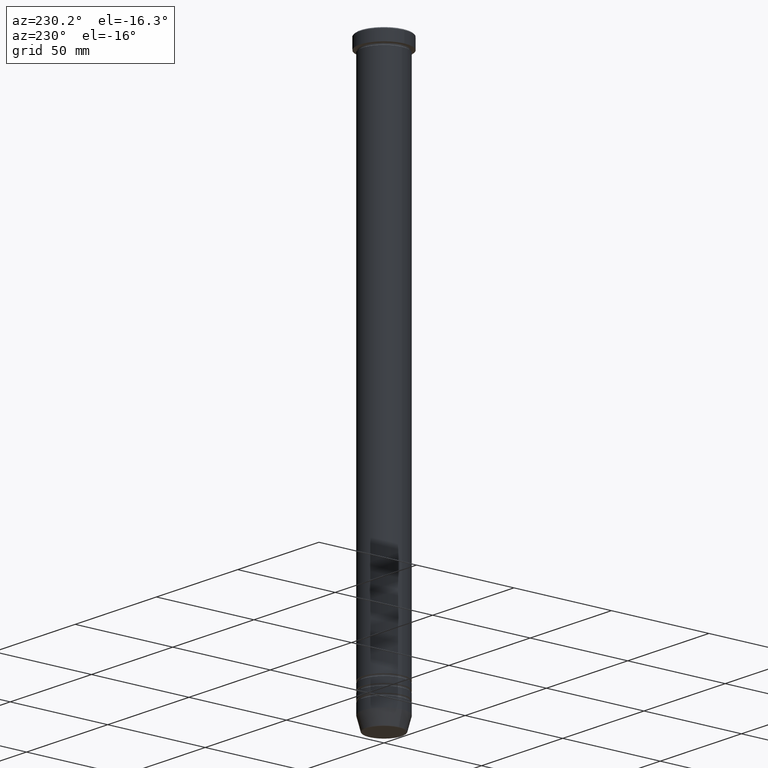
[diagram: clean part render]
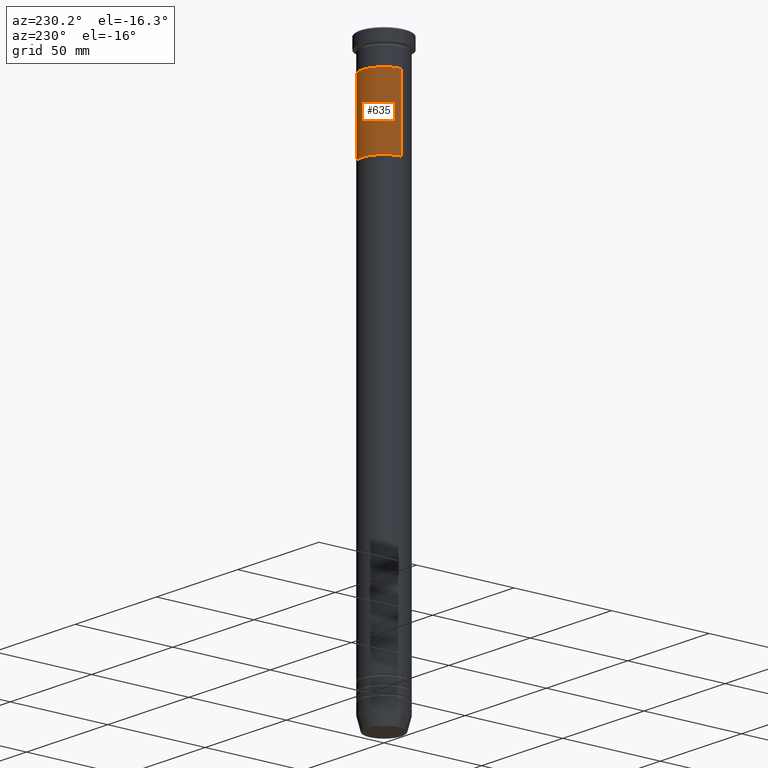
[diagram: same view with one face highlighted and labeled with its STEP entity id]
A machine part, auxiliary view. The second image highlights one B-rep face of the part: STEP entity #635.
In plain terms, the highlighted cylindrical surface (edge-blend (fillet) strip) has radius 11 mm, axis along (-0, -0, 1).
Its self-contained STEP definition (entity closure, byte-faithful):
#2 = AXIS2_PLACEMENT_3D ( 'NONE', #928, #307, #129 ) ;
#57 = VERTEX_POINT ( 'NONE', #301 ) ;
#76 = ORIENTED_EDGE ( 'NONE', *, *, #100, .T. ) ;
#77 = VERTEX_POINT ( 'NONE', #654 ) ;
#81 = VERTEX_POINT ( 'NONE', #390 ) ;
#100 = EDGE_CURVE ( 'NONE', #57, #1128, #256, .T. ) ;
#129 = DIRECTION ( 'NONE',  ( -1.000000000000000000, 0.000000000000000000, 0.000000000000000000 ) ) ;
#144 = ORIENTED_EDGE ( 'NONE', *, *, #146, .F. ) ;
#146 = EDGE_CURVE ( 'NONE', #77, #81, #346, .T. ) ;
#169 = EDGE_CURVE ( 'NONE', #77, #57, #788, .T. ) ;
#252 = DIRECTION ( 'NONE',  ( -1.000000000000000000, 0.000000000000000000, 0.000000000000000000 ) ) ;
#256 = CIRCLE ( 'NONE', #2, 11.00000000000000000 ) ;
#263 = FACE_OUTER_BOUND ( 'NONE', #1127, .T. ) ;
#265 = ORIENTED_EDGE ( 'NONE', *, *, #169, .T. ) ;
#289 = VECTOR ( 'NONE', #1040, 1000.000000000000000 ) ;
#298 = ORIENTED_EDGE ( 'NONE', *, *, #436, .F. ) ;
#301 = CARTESIAN_POINT ( 'NONE',  ( -11.00000000000000000, 1.347111479062088405E-15, -16.00000000000000000 ) ) ;
#307 = DIRECTION ( 'NONE',  ( 0.000000000000000000, 0.000000000000000000, -1.000000000000000000 ) ) ;
#346 = CIRCLE ( 'NONE', #990, 11.00000000000000000 ) ;
#390 = CARTESIAN_POINT ( 'NONE',  ( 11.00000000000000000, 0.000000000000000000, -52.00000000000000000 ) ) ;
#410 = LINE ( 'NONE', #969, #1041 ) ;
#425 = DIRECTION ( 'NONE',  ( 1.000000000000000000, 0.000000000000000000, 0.000000000000000000 ) ) ;
#436 = EDGE_CURVE ( 'NONE', #81, #1128, #410, .T. ) ;
#635 = ADVANCED_FACE ( 'NONE', ( #263 ), #884, .T. ) ;
#654 = CARTESIAN_POINT ( 'NONE',  ( -11.00000000000000000, 1.347111479062088405E-15, -52.00000000000000000 ) ) ;
#788 = LINE ( 'NONE', #886, #289 ) ;
#849 = DIRECTION ( 'NONE',  ( -0.000000000000000000, -0.000000000000000000, 1.000000000000000000 ) ) ;
#884 = CYLINDRICAL_SURFACE ( 'NONE', #1027, 11.00000000000000000 ) ;
#886 = CARTESIAN_POINT ( 'NONE',  ( -11.00000000000000000, 1.347111479062088405E-15, -52.00000000000000000 ) ) ;
#928 = CARTESIAN_POINT ( 'NONE',  ( 0.000000000000000000, 0.000000000000000000, -16.00000000000000000 ) ) ;
#949 = CARTESIAN_POINT ( 'NONE',  ( 0.000000000000000000, 0.000000000000000000, -52.00000000000000000 ) ) ;
#957 = CARTESIAN_POINT ( 'NONE',  ( 0.000000000000000000, 0.000000000000000000, -52.00000000000000000 ) ) ;
#969 = CARTESIAN_POINT ( 'NONE',  ( 11.00000000000000000, 0.000000000000000000, -52.00000000000000000 ) ) ;
#990 = AXIS2_PLACEMENT_3D ( 'NONE', #957, #1034, #252 ) ;
#1027 = AXIS2_PLACEMENT_3D ( 'NONE', #949, #1029, #425 ) ;
#1029 = DIRECTION ( 'NONE',  ( -0.000000000000000000, -0.000000000000000000, 1.000000000000000000 ) ) ;
#1034 = DIRECTION ( 'NONE',  ( 0.000000000000000000, 0.000000000000000000, -1.000000000000000000 ) ) ;
#1040 = DIRECTION ( 'NONE',  ( -0.000000000000000000, -0.000000000000000000, 1.000000000000000000 ) ) ;
#1041 = VECTOR ( 'NONE', #849, 1000.000000000000000 ) ;
#1060 = CARTESIAN_POINT ( 'NONE',  ( 11.00000000000000000, 0.000000000000000000, -16.00000000000000000 ) ) ;
#1127 = EDGE_LOOP ( 'NONE', ( #144, #265, #76, #298 ) ) ;
#1128 = VERTEX_POINT ( 'NONE', #1060 ) ;